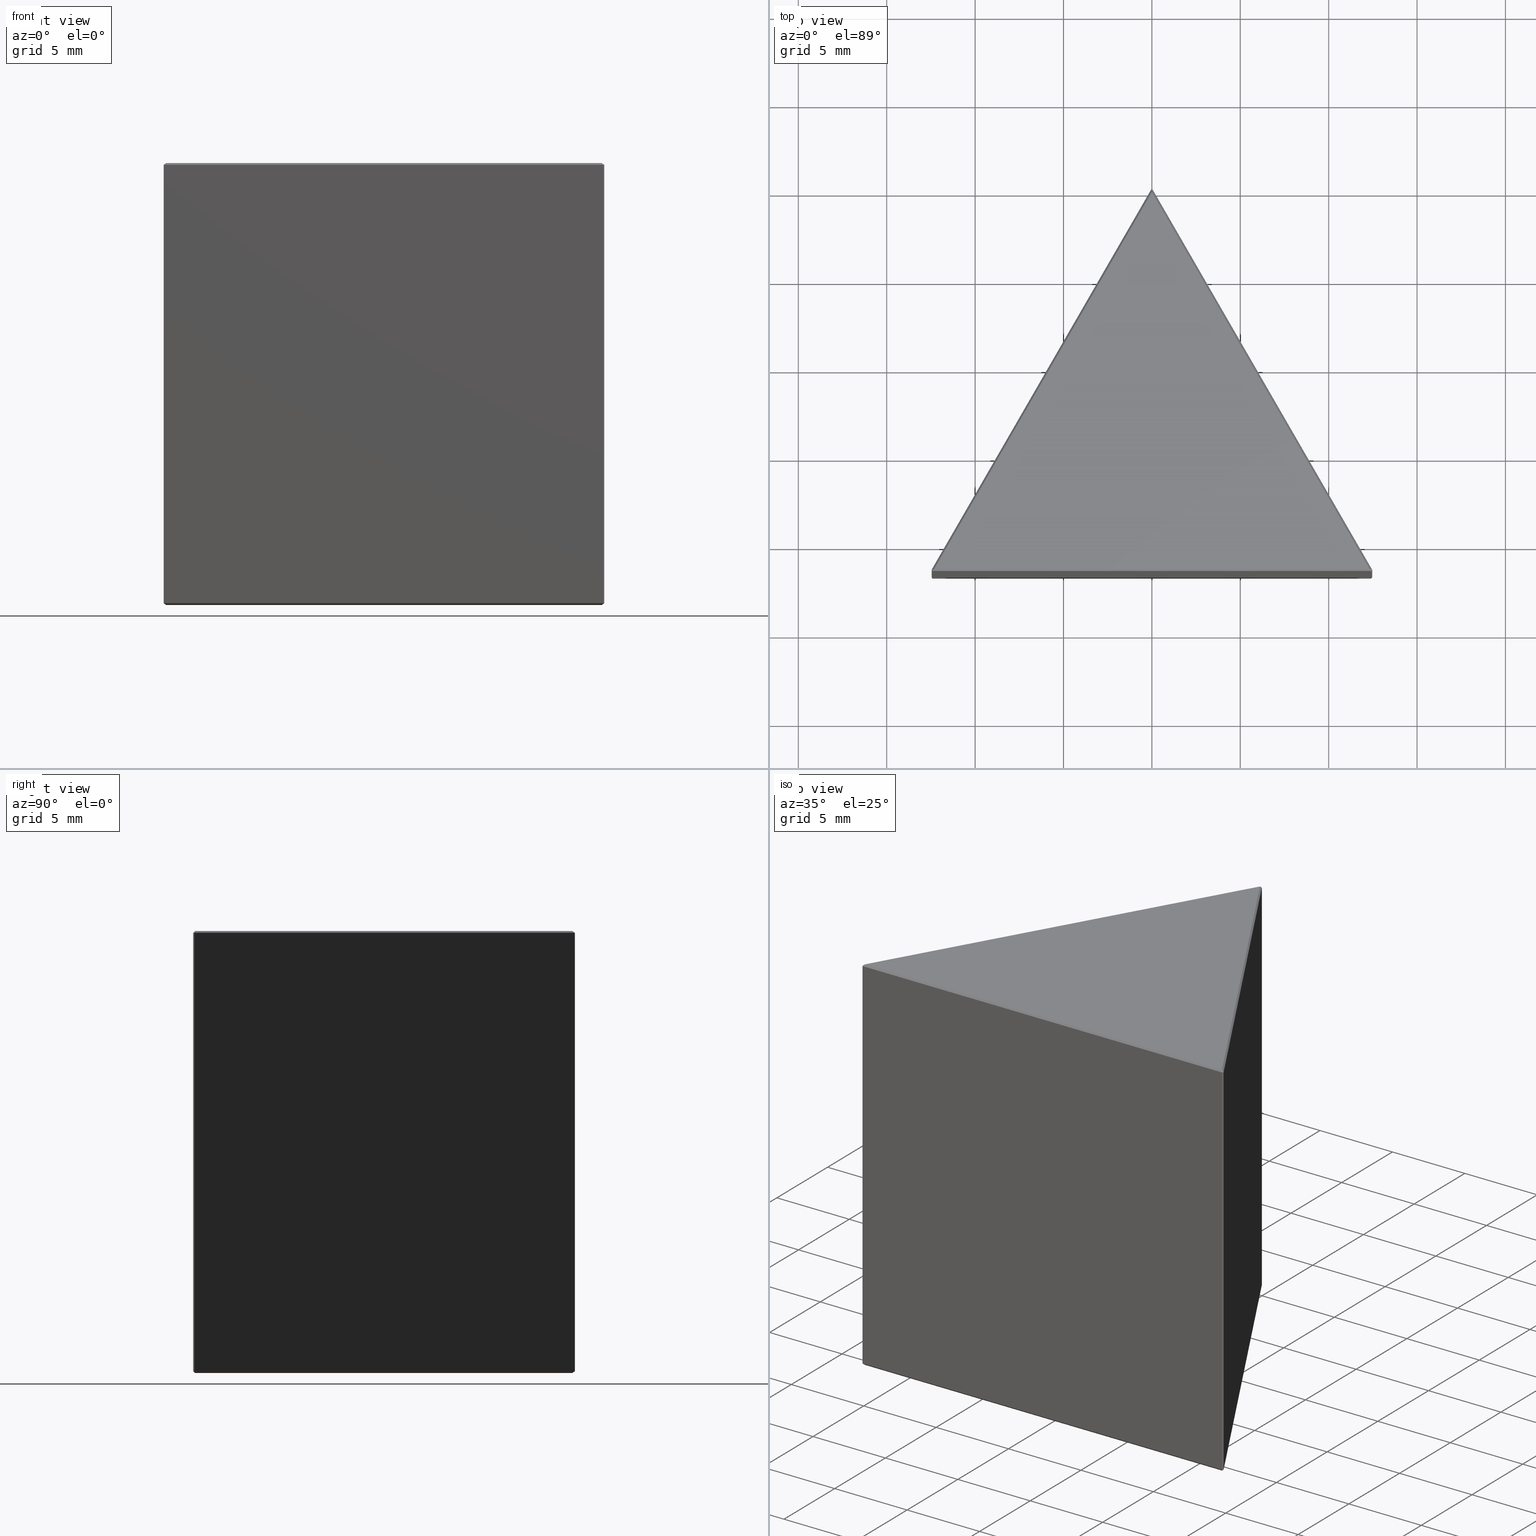
[diagram: canonical four-view strip — front | top / right | iso, engineering-drawing reading convention]
A machine part, canonical four-view strip (front | top / right | iso — engineering-drawing reading convention). The complete STEP part file that produces these views, byte-faithful:
ISO-10303-21;
HEADER;
FILE_DESCRIPTION (( 'STEP AP214' ),
    '1' );
FILE_NAME ('GPD-025-D.STEP',
    '2022-11-08T09:18:14',
    ( '' ),
    ( '' ),
    'SwSTEP 2.0',
    'SolidWorks 2022',
    '' );
FILE_SCHEMA (( 'AUTOMOTIVE_DESIGN' ));
ENDSEC;

DATA;
#1 = ORIENTED_EDGE ( 'NONE', *, *, #491, .F. ) ;
#2 = EDGE_CURVE ( 'NONE', #295, #421, #143, .T. ) ;
#3 = LINE ( 'NONE', #197, #466 ) ;
#4 = VECTOR ( 'NONE', #11, 1000.000000000000000 ) ;
#5 = CARTESIAN_POINT ( 'NONE',  ( 12.43452994616207796, -21.57950260807045240, 24.92113248654051816 ) ) ;
#6 = EDGE_LOOP ( 'NONE', ( #195, #419, #311, #208 ) ) ;
#7 = DIRECTION ( 'NONE',  ( 1.000000000000000000, 0.000000000000000000, -0.000000000000000000 ) ) ;
#8 = PRODUCT_DEFINITION ( 'δ֪', '', #228, #280 ) ;
#9 = DIRECTION ( 'NONE',  ( -0.5000000000000001110, -0.8660254037844385966, 0.000000000000000000 ) ) ;
#10 = LINE ( 'NONE', #169, #439 ) ;
#11 = DIRECTION ( 'NONE',  ( -1.000000000000000000, 0.000000000000000000, 0.000000000000000000 ) ) ;
#12 = DIRECTION ( 'NONE',  ( -0.6123724356957733761, -0.3535533905932615739, 0.7071067811865719976 ) ) ;
#13 = DIRECTION ( 'NONE',  ( 0.4472135954999716945, -0.4472135954999472141, 0.7745966692414817389 ) ) ;
#14 = DIRECTION ( 'NONE',  ( -0.6109051323707536119, -0.1636915368707840823, 0.7745966692414528731 ) ) ;
#15 = LINE ( 'NONE', #174, #372 ) ;
#16 = DIRECTION ( 'NONE',  ( 0.4597008433809820493, -0.6279630301995547947, -0.6279630301995547947 ) ) ;
#17 = DIRECTION ( 'NONE',  ( -0.2588190451025213501, -0.9659258262890682012, -0.000000000000000000 ) ) ;
#18 = AXIS2_PLACEMENT_3D ( 'NONE', #105, #373, #183 ) ;
#19 = ORIENTED_EDGE ( 'NONE', *, *, #25, .F. ) ;
#20 = ADVANCED_FACE ( 'NONE', ( #62 ), #361, .T. ) ;
#21 = VERTEX_POINT ( 'NONE', #38 ) ;
#22 = SURFACE_STYLE_FILL_AREA ( #216 ) ;
#23 = CARTESIAN_POINT ( 'NONE',  ( -0.08660254037844182518, -0.04999999999999883010, 25.00000000000000000 ) ) ;
#24 = LINE ( 'NONE', #293, #163 ) ;
#25 = EDGE_CURVE ( 'NONE', #404, #365, #231, .T. ) ;
#26 = AXIS2_PLACEMENT_3D ( 'NONE', #374, #66, #447 ) ;
#27 = VECTOR ( 'NONE', #363, 1000.000000000000114 ) ;
#28 = APPLICATION_CONTEXT ( 'automotive_design' ) ;
#29 = SURFACE_STYLE_USAGE ( .BOTH. , #102 ) ;
#30 = ADVANCED_FACE ( 'NONE', ( #342 ), #499, .T. ) ;
#31 = CARTESIAN_POINT ( 'NONE',  ( -12.32679491924311321, -21.55063509461096771, 0.000000000000000000 ) ) ;
#32 = PRODUCT_DEFINITION_SHAPE ( 'NONE', 'NONE',  #8 ) ;
#33 = CARTESIAN_POINT ( 'NONE',  ( -12.40566243270258084, -21.62950260807044245, 24.92113248654052526 ) ) ;
#34 = CARTESIAN_POINT ( 'NONE',  ( 0.05000000000000286854, -0.08660254037844881958, 24.90000000000000213 ) ) ;
#35 = ORIENTED_EDGE ( 'NONE', *, *, #463, .F. ) ;
#36 = ADVANCED_BREP_SHAPE_REPRESENTATION ( 'GPD-025-D', ( #415, #65 ), #456 ) ;
#37 = EDGE_CURVE ( 'NONE', #92, #59, #315, .T. ) ;
#38 = CARTESIAN_POINT ( 'NONE',  ( 0.05000000000000286854, -0.08660254037844881958, 24.90000000000000213 ) ) ;
#39 = VERTEX_POINT ( 'NONE', #118 ) ;
#40 = AXIS2_PLACEMENT_3D ( 'NONE', #449, #451, #64 ) ;
#41 = CARTESIAN_POINT ( 'NONE',  ( 12.46339745962155732, -21.58723763498941040, 24.90000000000000213 ) ) ;
#42 = ORIENTED_EDGE ( 'NONE', *, *, #279, .T. ) ;
#43 = CARTESIAN_POINT ( 'NONE',  ( -0.03660254037844570818, -0.06339745962155932113, 0.09999999999999592548 ) ) ;
#44 = ORIENTED_EDGE ( 'NONE', *, *, #153, .T. ) ;
#45 = EDGE_LOOP ( 'NONE', ( #501, #485, #114 ) ) ;
#46 = CARTESIAN_POINT ( 'NONE',  ( 0.000000000000000000, 0.000000000000000000, 25.00000000000000000 ) ) ;
#47 = AXIS2_PLACEMENT_3D ( 'NONE', #218, #14, #234 ) ;
#48 = DIRECTION ( 'NONE',  ( 1.000000000000000000, 0.000000000000000000, 0.000000000000000000 ) ) ;
#49 = LINE ( 'NONE', #248, #465 ) ;
#50 = ORIENTED_EDGE ( 'NONE', *, *, #184, .F. ) ;
#51 = DIRECTION ( 'NONE',  ( -0.8660254037844434816, 0.000000000000000000, -0.4999999999999915623 ) ) ;
#52 = PLANE ( 'NONE',  #351 ) ;
#53 = VERTEX_POINT ( 'NONE', #273 ) ;
#54 = DIRECTION ( 'NONE',  ( 0.000000000000000000, 0.000000000000000000, -1.000000000000000000 ) ) ;
#55 = CARTESIAN_POINT ( 'NONE',  ( 0.04665063509461227914, -0.09419872981078535046, 0.09330127018921720305 ) ) ;
#56 = EDGE_CURVE ( 'NONE', #92, #425, #194, .T. ) ;
#57 = EDGE_LOOP ( 'NONE', ( #389, #94, #348 ) ) ;
#58 = PRESENTATION_LAYER_ASSIGNMENT (  '', '', ( #440 ) ) ;
#59 = VERTEX_POINT ( 'NONE', #41 ) ;
#60 = LINE ( 'NONE', #33, #100 ) ;
#61 = CARTESIAN_POINT ( 'NONE',  ( -12.42679491924310220, -21.65063509461096558, 0.09999999999999592548 ) ) ;
#62 = FACE_OUTER_BOUND ( 'NONE', #57, .T. ) ;
#63 =( NAMED_UNIT ( * ) PLANE_ANGLE_UNIT ( ) SI_UNIT ( $, .RADIAN. ) );
#64 = DIRECTION ( 'NONE',  ( 0.000000000000000000, 0.000000000000000000, -1.000000000000000000 ) ) ;
#65 = AXIS2_PLACEMENT_3D ( 'NONE', #310, #116, #382 ) ;
#66 = DIRECTION ( 'NONE',  ( 0.6123724356957787052, -0.3535533905932646270, 0.7071067811865658914 ) ) ;
#67 = FACE_OUTER_BOUND ( 'NONE', #294, .T. ) ;
#68 = EDGE_CURVE ( 'NONE', #404, #53, #49, .T. ) ;
#69 = AXIS2_PLACEMENT_3D ( 'NONE', #23, #301, #375 ) ;
#70 = DIRECTION ( 'NONE',  ( 0.5000000000000000000, 0.8660254037844385966, 0.000000000000000000 ) ) ;
#71 = ORIENTED_EDGE ( 'NONE', *, *, #130, .T. ) ;
#72 = EDGE_LOOP ( 'NONE', ( #140, #369, #388 ) ) ;
#73 = CARTESIAN_POINT ( 'NONE',  ( -12.42679491924310220, -21.65063509461096558, 0.09999999999999592548 ) ) ;
#74 = ORIENTED_EDGE ( 'NONE', *, *, #313, .F. ) ;
#75 = AXIS2_PLACEMENT_3D ( 'NONE', #34, #337, #494 ) ;
#76 = VECTOR ( 'NONE', #317, 1000.000000000000114 ) ;
#77 = VERTEX_POINT ( 'NONE', #399 ) ;
#78 = PLANE ( 'NONE',  #497 ) ;
#79 = LINE ( 'NONE', #138, #477 ) ;
#80 = DIRECTION ( 'NONE',  ( -1.000000000000000000, 0.000000000000000000, 0.000000000000000000 ) ) ;
#81 = CARTESIAN_POINT ( 'NONE',  ( 12.40000000000000391, -21.65063509461096558, 24.90000000000000213 ) ) ;
#82 = DIRECTION ( 'NONE',  ( 0.3139815150997988247, 0.7120941236088151882, -0.6279630301995717812 ) ) ;
#83 = ORIENTED_EDGE ( 'NONE', *, *, #184, .T. ) ;
#84 = FACE_OUTER_BOUND ( 'NONE', #489, .T. ) ;
#85 = AXIS2_PLACEMENT_3D ( 'NONE', #220, #446, #98 ) ;
#86 = LINE ( 'NONE', #175, #200 ) ;
#87 = LINE ( 'NONE', #243, #226 ) ;
#88 = ORIENTED_EDGE ( 'NONE', *, *, #341, .T. ) ;
#89 = ADVANCED_FACE ( 'NONE', ( #240 ), #433, .F. ) ;
#90 = PLANE ( 'NONE',  #392 ) ;
#91 = CARTESIAN_POINT ( 'NONE',  ( 0.000000000000000000, 0.000000000000000000, 0.000000000000000000 ) ) ;
#92 = VERTEX_POINT ( 'NONE', #129 ) ;
#93 = CARTESIAN_POINT ( 'NONE',  ( -0.03660254037844570818, -0.06339745962155932113, 24.90000000000000213 ) ) ;
#94 = ORIENTED_EDGE ( 'NONE', *, *, #387, .T. ) ;
#95 = FACE_OUTER_BOUND ( 'NONE', #271, .T. ) ;
#96 = LINE ( 'NONE', #152, #306 ) ;
#97 = ORIENTED_EDGE ( 'NONE', *, *, #2, .T. ) ;
#98 = DIRECTION ( 'NONE',  ( 0.000000000000000000, 0.7851876162409640036, 0.6192579489209909527 ) ) ;
#99 = APPLICATION_CONTEXT ( 'automotive_design' ) ;
#100 = VECTOR ( 'NONE', #188, 1000.000000000000227 ) ;
#101 = PRODUCT ( 'GPD-025-D', 'GPD-025-D', '', ( #120 ) ) ;
#102 = SURFACE_SIDE_STYLE ('',( #22 ) ) ;
#103 = EDGE_CURVE ( 'NONE', #352, #147, #431, .T. ) ;
#104 = PLANE ( 'NONE',  #124 ) ;
#105 = CARTESIAN_POINT ( 'NONE',  ( 12.50000000000000000, -21.65063509461096558, 25.00000000000000000 ) ) ;
#106 = LINE ( 'NONE', #256, #192 ) ;
#107 = ORIENTED_EDGE ( 'NONE', *, *, #130, .F. ) ;
#108 = DIRECTION ( 'NONE',  ( -0.7886751345948300740, 0.2113248654051766151, -0.5773502691896058581 ) ) ;
#109 = EDGE_CURVE ( 'NONE', #425, #21, #364, .T. ) ;
#110 = VECTOR ( 'NONE', #82, 1000.000000000000000 ) ;
#111 = VECTOR ( 'NONE', #426, 1000.000000000000114 ) ;
#112 = PLANE ( 'NONE',  #146 ) ;
#113 = UNCERTAINTY_MEASURE_WITH_UNIT (LENGTH_MEASURE( 1.000000000000000082E-05 ), #346, 'distance_accuracy_value', 'NONE');
#114 = ORIENTED_EDGE ( 'NONE', *, *, #37, .F. ) ;
#115 = ADVANCED_FACE ( 'NONE', ( #284 ), #287, .F. ) ;
#116 = DIRECTION ( 'NONE',  ( 0.000000000000000000, 0.000000000000000000, 1.000000000000000000 ) ) ;
#117 = FACE_OUTER_BOUND ( 'NONE', #462, .T. ) ;
#118 = CARTESIAN_POINT ( 'NONE',  ( -1.811384529206523306E-15, -0.2000000000000053402, 0.000000000000000000 ) ) ;
#119 = ORIENTED_EDGE ( 'NONE', *, *, #223, .F. ) ;
#120 = PRODUCT_CONTEXT ( 'NONE', #28, 'mechanical' ) ;
#121 = LINE ( 'NONE', #283, #227 ) ;
#122 = ORIENTED_EDGE ( 'NONE', *, *, #420, .T. ) ;
#123 = AXIS2_PLACEMENT_3D ( 'NONE', #142, #17, #403 ) ;
#124 = AXIS2_PLACEMENT_3D ( 'NONE', #182, #410, #334 ) ;
#125 = LINE ( 'NONE', #239, #111 ) ;
#126 = ORIENTED_EDGE ( 'NONE', *, *, #405, .F. ) ;
#127 = FACE_OUTER_BOUND ( 'NONE', #329, .T. ) ;
#128 = ORIENTED_EDGE ( 'NONE', *, *, #268, .F. ) ;
#129 = CARTESIAN_POINT ( 'NONE',  ( 12.32679491924311854, -21.55063509461096771, 25.00000000000000000 ) ) ;
#130 = EDGE_CURVE ( 'NONE', #395, #21, #481, .T. ) ;
#131 = CARTESIAN_POINT ( 'NONE',  ( -0.08660254037844784814, -0.05000000000000231343, 0.000000000000000000 ) ) ;
#132 = VECTOR ( 'NONE', #54, 1000.000000000000000 ) ;
#133 = DIRECTION ( 'NONE',  ( 1.000000000000000000, 0.000000000000000000, -0.000000000000000000 ) ) ;
#134 = PRESENTATION_LAYER_ASSIGNMENT (  '', '', ( #181 ) ) ;
#135 = ORIENTED_EDGE ( 'NONE', *, *, #230, .T. ) ;
#136 = EDGE_CURVE ( 'NONE', #391, #404, #437, .T. ) ;
#137 = LINE ( 'NONE', #167, #212 ) ;
#138 = CARTESIAN_POINT ( 'NONE',  ( -12.41339745962155661, -21.70063509461096274, 25.00000000000000000 ) ) ;
#139 = LINE ( 'NONE', #217, #320 ) ;
#140 = ORIENTED_EDGE ( 'NONE', *, *, #461, .T. ) ;
#141 = LINE ( 'NONE', #368, #486 ) ;
#142 = CARTESIAN_POINT ( 'NONE',  ( -0.03660254037844570818, -0.06339745962155932113, 25.00000000000000000 ) ) ;
#143 = LINE ( 'NONE', #253, #4 ) ;
#144 = CARTESIAN_POINT ( 'NONE',  ( -12.44999999999999396, -21.56403255423251153, 24.90000000000000213 ) ) ;
#145 = FACE_OUTER_BOUND ( 'NONE', #156, .T. ) ;
#146 = AXIS2_PLACEMENT_3D ( 'NONE', #73, #383, #193 ) ;
#147 = VERTEX_POINT ( 'NONE', #61 ) ;
#148 = DIRECTION ( 'NONE',  ( -1.000000000000000000, 0.000000000000000000, 0.000000000000000000 ) ) ;
#149 = EDGE_CURVE ( 'NONE', #352, #39, #139, .T. ) ;
#150 = DIRECTION ( 'NONE',  ( 0.000000000000000000, -0.7071067811865475727, 0.7071067811865475727 ) ) ;
#151 = AXIS2_PLACEMENT_3D ( 'NONE', #224, #150, #148 ) ;
#152 = CARTESIAN_POINT ( 'NONE',  ( 0.000000000000000000, 0.000000000000000000, 0.09999999999999592548 ) ) ;
#153 = EDGE_CURVE ( 'NONE', #247, #295, #24, .T. ) ;
#154 = DIRECTION ( 'NONE',  ( -0.4597008433810226835, 0.6279630301995507979, -0.6279630301995290376 ) ) ;
#155 = DIRECTION ( 'NONE',  ( 0.5000000000000000000, 0.8660254037844385966, -0.000000000000000000 ) ) ;
#156 = EDGE_LOOP ( 'NONE', ( #135, #119, #205, #316 ) ) ;
#157 = VERTEX_POINT ( 'NONE', #356 ) ;
#158 = EDGE_CURVE ( 'NONE', #157, #247, #10, .T. ) ;
#159 = LINE ( 'NONE', #278, #132 ) ;
#160 = CARTESIAN_POINT ( 'NONE',  ( 0.000000000000000000, 0.000000000000000000, 25.00000000000000000 ) ) ;
#161 = UNCERTAINTY_MEASURE_WITH_UNIT (LENGTH_MEASURE( 1.000000000000000082E-05 ), #180, 'distance_accuracy_value', 'NONE');
#162 = ORIENTED_EDGE ( 'NONE', *, *, #158, .T. ) ;
#163 = VECTOR ( 'NONE', #424, 1000.000000000000000 ) ;
#164 = EDGE_CURVE ( 'NONE', #157, #395, #87, .T. ) ;
#165 = DIRECTION ( 'NONE',  ( 0.000000000000000000, 0.000000000000000000, -1.000000000000000000 ) ) ;
#166 = ORIENTED_EDGE ( 'NONE', *, *, #238, .F. ) ;
#167 = CARTESIAN_POINT ( 'NONE',  ( 0.000000000000000000, -21.55063509461096771, 0.000000000000000000 ) ) ;
#168 = ADVANCED_FACE ( 'NONE', ( #207 ), #52, .T. ) ;
#169 = CARTESIAN_POINT ( 'NONE',  ( 12.46339745962155732, -21.58723763498941040, 0.09999999999999716060 ) ) ;
#170 = ORIENTED_EDGE ( 'NONE', *, *, #136, .T. ) ;
#171 = SURFACE_STYLE_USAGE ( .BOTH. , #245 ) ;
#172 = DIRECTION ( 'NONE',  ( 0.8660254037844316022, 0.000000000000000000, -0.5000000000000123235 ) ) ;
#173 = ORIENTED_EDGE ( 'NONE', *, *, #109, .T. ) ;
#174 = CARTESIAN_POINT ( 'NONE',  ( -0.02886751345948175215, -0.09226497308104289474, 24.92113248654052171 ) ) ;
#175 = CARTESIAN_POINT ( 'NONE',  ( -12.42679491924310220, -21.65063509461096558, 25.00000000000000000 ) ) ;
#176 = DIRECTION ( 'NONE',  ( 0.000000000000000000, 0.000000000000000000, 1.000000000000000000 ) ) ;
#177 = ORIENTED_EDGE ( 'NONE', *, *, #469, .T. ) ;
#178 = DIRECTION ( 'NONE',  ( 0.000000000000000000, 0.000000000000000000, 1.000000000000000000 ) ) ;
#179 = ADVANCED_FACE ( 'NONE', ( #145 ), #487, .F. ) ;
#180 =( LENGTH_UNIT ( ) NAMED_UNIT ( * ) SI_UNIT ( .MILLI., .METRE. ) );
#181 = STYLED_ITEM ( 'NONE', ( #367 ), #36 ) ;
#182 = CARTESIAN_POINT ( 'NONE',  ( -12.50000000000000000, -21.65063509461096558, 25.00000000000000000 ) ) ;
#183 = DIRECTION ( 'NONE',  ( 0.5000000000000000000, -0.8660254037844385966, 0.000000000000000000 ) ) ;
#184 = EDGE_CURVE ( 'NONE', #21, #59, #186, .T. ) ;
#185 = APPLICATION_PROTOCOL_DEFINITION ( 'draft international standard', 'automotive_design', 1998, #28 ) ;
#186 = LINE ( 'NONE', #298, #312 ) ;
#187 = ADVANCED_FACE ( 'NONE', ( #308 ), #259, .F. ) ;
#188 = DIRECTION ( 'NONE',  ( 0.5773502691895722183, 0.5773502691896524874, 0.5773502691896524874 ) ) ;
#189 = DIRECTION ( 'NONE',  ( 0.5000000000000001110, -0.8660254037844387076, -0.000000000000000000 ) ) ;
#190 = ADVANCED_FACE ( 'NONE', ( #376 ), #265, .F. ) ;
#191 = CARTESIAN_POINT ( 'NONE',  ( 2.480284612299828421E-18, 4.295978965734572751E-18, 24.90000000000000213 ) ) ;
#192 = VECTOR ( 'NONE', #221, 1000.000000000000000 ) ;
#193 = DIRECTION ( 'NONE',  ( -0.7851876162409392457, 0.000000000000000000, 0.6192579489210222610 ) ) ;
#194 = LINE ( 'NONE', #418, #333 ) ;
#195 = ORIENTED_EDGE ( 'NONE', *, *, #260, .F. ) ;
#196 = ORIENTED_EDGE ( 'NONE', *, *, #233, .F. ) ;
#197 = CARTESIAN_POINT ( 'NONE',  ( 0.05000000000000286854, -0.08660254037844881958, 24.90000000000000213 ) ) ;
#198 = CARTESIAN_POINT ( 'NONE',  ( 0.08660254037844257458, -0.04999999999999926725, 25.00000000000000000 ) ) ;
#199 = EDGE_LOOP ( 'NONE', ( #244, #288, #1, #19 ) ) ;
#200 = VECTOR ( 'NONE', #479, 1000.000000000000000 ) ;
#201 = EDGE_CURVE ( 'NONE', #147, #391, #411, .T. ) ;
#202 = DIRECTION ( 'NONE',  ( 0.000000000000000000, 0.000000000000000000, 1.000000000000000000 ) ) ;
#203 = CARTESIAN_POINT ( 'NONE',  ( 12.40000000000000391, -21.65063509461096558, 24.90000000000000213 ) ) ;
#204 = CARTESIAN_POINT ( 'NONE',  ( 0.05000000000000143219, -0.08660254037844497543, 25.00000000000000000 ) ) ;
#205 = ORIENTED_EDGE ( 'NONE', *, *, #435, .F. ) ;
#206 = CARTESIAN_POINT ( 'NONE',  ( 12.46339745962155732, -21.58723763498941040, 0.09999999999999716060 ) ) ;
#207 = FACE_OUTER_BOUND ( 'NONE', #45, .T. ) ;
#208 = ORIENTED_EDGE ( 'NONE', *, *, #409, .F. ) ;
#209 = DIRECTION ( 'NONE',  ( -0.5000000000000000000, 0.8660254037844385966, 0.000000000000000000 ) ) ;
#210 = DIRECTION ( 'NONE',  ( -0.5773502691895923133, -0.5773502691896524874, 0.5773502691896325034 ) ) ;
#211 = ORIENTED_EDGE ( 'NONE', *, *, #491, .T. ) ;
#212 = VECTOR ( 'NONE', #80, 1000.000000000000000 ) ;
#213 = LINE ( 'NONE', #81, #322 ) ;
#214 = ORIENTED_EDGE ( 'NONE', *, *, #299, .F. ) ;
#215 = ADVANCED_FACE ( 'NONE', ( #67 ), #225, .T. ) ;
#216 = FILL_AREA_STYLE ('',( #305 ) ) ;
#217 = CARTESIAN_POINT ( 'NONE',  ( 0.08660254037844482278, -0.05000000000000056483, 0.000000000000000000 ) ) ;
#218 = CARTESIAN_POINT ( 'NONE',  ( -12.44999999999999396, -21.56403255423251153, 24.90000000000000213 ) ) ;
#219 =( NAMED_UNIT ( * ) SI_UNIT ( $, .STERADIAN. ) SOLID_ANGLE_UNIT ( ) );
#220 = CARTESIAN_POINT ( 'NONE',  ( -0.03660254037844570818, -0.06339745962155932113, 0.09999999999999592548 ) ) ;
#221 = DIRECTION ( 'NONE',  ( -0.7736823584807627219, -0.08413109340921076651, 0.6279630301995614561 ) ) ;
#222 = DIRECTION ( 'NONE',  ( 0.000000000000000000, 0.000000000000000000, -1.000000000000000000 ) ) ;
#223 = EDGE_CURVE ( 'NONE', #237, #391, #96, .T. ) ;
#224 = CARTESIAN_POINT ( 'NONE',  ( 0.000000000000000000, -21.55063509461096771, 25.00000000000000000 ) ) ;
#225 = PLANE ( 'NONE',  #75 ) ;
#226 = VECTOR ( 'NONE', #394, 999.9999999999998863 ) ;
#227 = VECTOR ( 'NONE', #390, 1000.000000000000000 ) ;
#228 = PRODUCT_DEFINITION_FORMATION_WITH_SPECIFIED_SOURCE ( '�κ�', '', #101, .NOT_KNOWN. ) ;
#229 = ORIENTED_EDGE ( 'NONE', *, *, #230, .F. ) ;
#230 = EDGE_CURVE ( 'NONE', #352, #391, #106, .T. ) ;
#231 = LINE ( 'NONE', #191, #296 ) ;
#232 = ORIENTED_EDGE ( 'NONE', *, *, #56, .F. ) ;
#233 = EDGE_CURVE ( 'NONE', #395, #237, #371, .T. ) ;
#234 = DIRECTION ( 'NONE',  ( 0.7851876162409204829, 0.000000000000000000, 0.6192579489210460197 ) ) ;
#235 = ORIENTED_EDGE ( 'NONE', *, *, #233, .T. ) ;
#236 = LINE ( 'NONE', #131, #401 ) ;
#237 = VERTEX_POINT ( 'NONE', #339 ) ;
#238 = EDGE_CURVE ( 'NONE', #157, #77, #498, .T. ) ;
#239 = CARTESIAN_POINT ( 'NONE',  ( -0.03660254037844570818, -0.06339745962155932113, 0.09999999999999592548 ) ) ;
#240 = FACE_OUTER_BOUND ( 'NONE', #72, .T. ) ;
#241 = ORIENTED_EDGE ( 'NONE', *, *, #136, .F. ) ;
#242 = DIRECTION ( 'NONE',  ( 0.5000000000000001110, -0.8660254037844385966, 0.000000000000000000 ) ) ;
#243 = CARTESIAN_POINT ( 'NONE',  ( 12.50000000000000000, -21.65063509461096558, 0.09999999999999592548 ) ) ;
#244 = ORIENTED_EDGE ( 'NONE', *, *, #68, .T. ) ;
#245 = SURFACE_SIDE_STYLE ('',( #290 ) ) ;
#246 = CARTESIAN_POINT ( 'NONE',  ( -12.42679491924310220, -21.65063509461096558, 0.09999999999999592548 ) ) ;
#247 = VERTEX_POINT ( 'NONE', #267 ) ;
#248 = CARTESIAN_POINT ( 'NONE',  ( -12.44999999999999396, -21.56403255423251153, 24.90000000000000213 ) ) ;
#249 = EDGE_LOOP ( 'NONE', ( #357, #476, #229 ) ) ;
#250 = VECTOR ( 'NONE', #176, 1000.000000000000000 ) ;
#251 = VECTOR ( 'NONE', #165, 1000.000000000000000 ) ;
#252 = CARTESIAN_POINT ( 'NONE',  ( -12.44999999999999574, -21.56403255423251508, 25.00000000000000000 ) ) ;
#253 = CARTESIAN_POINT ( 'NONE',  ( -12.50000000000000000, -21.65063509461096558, 24.90000000000000213 ) ) ;
#254 = CARTESIAN_POINT ( 'NONE',  ( -12.42679491924310220, -21.65063509461096558, 25.00000000000000000 ) ) ;
#255 = PLANE ( 'NONE',  #85 ) ;
#256 = CARTESIAN_POINT ( 'NONE',  ( -12.44174682452693048, -21.56313509461095634, 0.09330127018921194337 ) ) ;
#257 = ADVANCED_FACE ( 'NONE', ( #117 ), #414, .F. ) ;
#258 = EDGE_LOOP ( 'NONE', ( #379, #400, #128, #241 ) ) ;
#259 = PLANE ( 'NONE',  #40 ) ;
#260 = EDGE_CURVE ( 'NONE', #247, #77, #340, .T. ) ;
#261 = VECTOR ( 'NONE', #328, 1000.000000000000000 ) ;
#262 = FACE_OUTER_BOUND ( 'NONE', #432, .T. ) ;
#263 = DIRECTION ( 'NONE',  ( -0.2588190451025392247, 0.9659258262890633162, -7.029919865644004869E-17 ) ) ;
#264 = FACE_OUTER_BOUND ( 'NONE', #258, .T. ) ;
#265 = PLANE ( 'NONE',  #18 ) ;
#266 = ADVANCED_FACE ( 'NONE', ( #457 ), #112, .T. ) ;
#267 = CARTESIAN_POINT ( 'NONE',  ( 12.40000000000000391, -21.65063509461096558, 0.09999999999999592548 ) ) ;
#268 = EDGE_CURVE ( 'NONE', #404, #421, #345, .T. ) ;
#269 = COLOUR_RGB ( '',1.000000000000000000, 1.000000000000000000, 1.000000000000000000 ) ;
#270 = DIRECTION ( 'NONE',  ( -0.9659258262890680902, 0.2588190451025212946, -1.771084676333514617E-14 ) ) ;
#271 = EDGE_LOOP ( 'NONE', ( #460, #467, #196 ) ) ;
#272 = DIRECTION ( 'NONE',  ( 0.8660254037844387076, -0.5000000000000001110, 0.000000000000000000 ) ) ;
#273 = CARTESIAN_POINT ( 'NONE',  ( -12.32679491924311677, -21.55063509461096771, 25.00000000000000000 ) ) ;
#274 = EDGE_LOOP ( 'NONE', ( #162, #300, #166 ) ) ;
#275 = DIRECTION ( 'NONE',  ( 0.5000000000000001110, 0.8660254037844387076, 0.000000000000000000 ) ) ;
#276 = ORIENTED_EDGE ( 'NONE', *, *, #56, .T. ) ;
#277 =( GEOMETRIC_REPRESENTATION_CONTEXT ( 3 ) GLOBAL_UNCERTAINTY_ASSIGNED_CONTEXT ( ( #113 ) ) GLOBAL_UNIT_ASSIGNED_CONTEXT ( ( #346, #327, #473 ) ) REPRESENTATION_CONTEXT ( 'NONE', 'WORKASPACE' ) );
#278 = CARTESIAN_POINT ( 'NONE',  ( -0.03660254037844570818, -0.06339745962155932113, 25.00000000000000000 ) ) ;
#279 = EDGE_CURVE ( 'NONE', #53, #92, #121, .T. ) ;
#280 = PRODUCT_DEFINITION_CONTEXT ( 'detailed design', #99, 'design' ) ;
#281 = EDGE_LOOP ( 'NONE', ( #126, #314, #318, #472 ) ) ;
#282 = PRESENTATION_STYLE_ASSIGNMENT (( #171 ) ) ;
#283 = CARTESIAN_POINT ( 'NONE',  ( 12.50000000000000000, -21.55063509461096771, 25.00000000000000000 ) ) ;
#284 = FACE_OUTER_BOUND ( 'NONE', #344, .T. ) ;
#285 = ORIENTED_EDGE ( 'NONE', *, *, #25, .T. ) ;
#286 = FACE_OUTER_BOUND ( 'NONE', #274, .T. ) ;
#287 = PLANE ( 'NONE',  #123 ) ;
#288 = ORIENTED_EDGE ( 'NONE', *, *, #341, .F. ) ;
#289 = VECTOR ( 'NONE', #408, 1000.000000000000000 ) ;
#290 = SURFACE_STYLE_FILL_AREA ( #464 ) ;
#291 = ORIENTED_EDGE ( 'NONE', *, *, #331, .T. ) ;
#292 = DIRECTION ( 'NONE',  ( 1.000000000000000000, 0.000000000000000000, 0.000000000000000000 ) ) ;
#293 = CARTESIAN_POINT ( 'NONE',  ( 12.40000000000000391, -21.65063509461096558, 25.00000000000000000 ) ) ;
#294 = EDGE_LOOP ( 'NONE', ( #211, #173, #35 ) ) ;
#295 = VERTEX_POINT ( 'NONE', #203 ) ;
#296 = VECTOR ( 'NONE', #275, 999.9999999999998863 ) ;
#297 = AXIS2_PLACEMENT_3D ( 'NONE', #160, #272, #70 ) ;
#298 = CARTESIAN_POINT ( 'NONE',  ( 12.50000000000000000, -21.65063509461096558, 24.90000000000000213 ) ) ;
#299 = EDGE_CURVE ( 'NONE', #395, #39, #397, .T. ) ;
#300 = ORIENTED_EDGE ( 'NONE', *, *, #260, .T. ) ;
#301 = DIRECTION ( 'NONE',  ( 0.6123724356957999104, 0.3535533905932768950, 0.7071067811865413555 ) ) ;
#302 = PLANE ( 'NONE',  #429 ) ;
#303 = ORIENTED_EDGE ( 'NONE', *, *, #37, .T. ) ;
#304 = CARTESIAN_POINT ( 'NONE',  ( 12.40000000000000391, -21.65063509461096558, 24.90000000000000213 ) ) ;
#305 = FILL_AREA_STYLE_COLOUR ( '', #343 ) ;
#306 = VECTOR ( 'NONE', #309, 999.9999999999998863 ) ;
#307 = VECTOR ( 'NONE', #263, 1000.000000000000114 ) ;
#308 = FACE_OUTER_BOUND ( 'NONE', #281, .T. ) ;
#309 = DIRECTION ( 'NONE',  ( -0.5000000000000001110, -0.8660254037844387076, 0.000000000000000000 ) ) ;
#310 = CARTESIAN_POINT ( 'NONE',  ( 0.000000000000000000, 0.000000000000000000, 0.000000000000000000 ) ) ;
#311 = ORIENTED_EDGE ( 'NONE', *, *, #103, .F. ) ;
#312 = VECTOR ( 'NONE', #189, 999.9999999999998863 ) ;
#313 = EDGE_CURVE ( 'NONE', #92, #295, #213, .T. ) ;
#314 = ORIENTED_EDGE ( 'NONE', *, *, #153, .F. ) ;
#315 = LINE ( 'NONE', #5, #455 ) ;
#316 = ORIENTED_EDGE ( 'NONE', *, *, #149, .F. ) ;
#317 = DIRECTION ( 'NONE',  ( 0.2588190451025392247, -0.9659258262890633162, -5.596628103994314545E-17 ) ) ;
#318 = ORIENTED_EDGE ( 'NONE', *, *, #158, .F. ) ;
#319 = CARTESIAN_POINT ( 'NONE',  ( -12.42679491924310220, -21.65063509461096558, 24.90000000000000213 ) ) ;
#320 = VECTOR ( 'NONE', #370, 1000.000000000000114 ) ;
#321 = ORIENTED_EDGE ( 'NONE', *, *, #164, .T. ) ;
#322 = VECTOR ( 'NONE', #16, 1000.000000000000114 ) ;
#323 = DIRECTION ( 'NONE',  ( -0.000000000000000000, 0.7071067811865352493, 0.7071067811865597852 ) ) ;
#324 = DIRECTION ( 'NONE',  ( 0.7736823584807439591, 0.08413109340920743584, 0.6279630301995848818 ) ) ;
#325 = DIRECTION ( 'NONE',  ( 0.9659258262890682012, -0.2588190451025212946, -3.977933358375440875E-15 ) ) ;
#326 = FACE_OUTER_BOUND ( 'NONE', #470, .T. ) ;
#327 =( NAMED_UNIT ( * ) PLANE_ANGLE_UNIT ( ) SI_UNIT ( $, .RADIAN. ) );
#328 = DIRECTION ( 'NONE',  ( 0.000000000000000000, 0.000000000000000000, 1.000000000000000000 ) ) ;
#329 = EDGE_LOOP ( 'NONE', ( #88, #42, #276 ) ) ;
#330 = ORIENTED_EDGE ( 'NONE', *, *, #335, .T. ) ;
#331 = EDGE_CURVE ( 'NONE', #421, #147, #86, .T. ) ;
#332 = CARTESIAN_POINT ( 'NONE',  ( 0.05000000000000286854, -0.08660254037844880570, 0.09999999999999716060 ) ) ;
#333 = VECTOR ( 'NONE', #385, 1000.000000000000114 ) ;
#334 = DIRECTION ( 'NONE',  ( 0.000000000000000000, -0.000000000000000000, 1.000000000000000000 ) ) ;
#335 = EDGE_CURVE ( 'NONE', #147, #247, #141, .T. ) ;
#336 = VECTOR ( 'NONE', #154, 1000.000000000000000 ) ;
#337 = DIRECTION ( 'NONE',  ( 0.1636915368707710372, 0.6109051323707384018, 0.7745966692414676391 ) ) ;
#338 =( NAMED_UNIT ( * ) SI_UNIT ( $, .STERADIAN. ) SOLID_ANGLE_UNIT ( ) );
#339 = CARTESIAN_POINT ( 'NONE',  ( -0.03660254037844570818, -0.06339745962155932113, 0.09999999999999592548 ) ) ;
#340 = LINE ( 'NONE', #496, #336 ) ;
#341 = EDGE_CURVE ( 'NONE', #425, #53, #79, .T. ) ;
#342 = FACE_OUTER_BOUND ( 'NONE', #199, .T. ) ;
#343 = COLOUR_RGB ( '',1.000000000000000000, 1.000000000000000000, 1.000000000000000000 ) ;
#344 = EDGE_LOOP ( 'NONE', ( #443, #107, #235, #445 ) ) ;
#345 = LINE ( 'NONE', #500, #76 ) ;
#346 =( LENGTH_UNIT ( ) NAMED_UNIT ( * ) SI_UNIT ( .MILLI., .METRE. ) );
#347 = UNCERTAINTY_MEASURE_WITH_UNIT (LENGTH_MEASURE( 1.000000000000000082E-05 ), #402, 'distance_accuracy_value', 'NONE');
#348 = ORIENTED_EDGE ( 'NONE', *, *, #68, .F. ) ;
#349 = ADVANCED_FACE ( 'NONE', ( #326 ), #471, .T. ) ;
#350 = FACE_OUTER_BOUND ( 'NONE', #6, .T. ) ;
#351 = AXIS2_PLACEMENT_3D ( 'NONE', #360, #13, #172 ) ;
#352 = VERTEX_POINT ( 'NONE', #31 ) ;
#353 =( GEOMETRIC_REPRESENTATION_CONTEXT ( 3 ) GLOBAL_UNCERTAINTY_ASSIGNED_CONTEXT ( ( #161 ) ) GLOBAL_UNIT_ASSIGNED_CONTEXT ( ( #180, #444, #338 ) ) REPRESENTATION_CONTEXT ( 'NONE', 'WORKASPACE' ) );
#354 = ADVANCED_FACE ( 'NONE', ( #450 ), #104, .F. ) ;
#355 = FILL_AREA_STYLE_COLOUR ( '', #269 ) ;
#356 = CARTESIAN_POINT ( 'NONE',  ( 12.46339745962155732, -21.58723763498941040, 0.09999999999999716060 ) ) ;
#357 = ORIENTED_EDGE ( 'NONE', *, *, #103, .T. ) ;
#358 = DIRECTION ( 'NONE',  ( 0.4472135954999598151, -0.4472135954999202356, -0.7745966692415040544 ) ) ;
#359 = ADVANCED_FACE ( 'NONE', ( #262 ), #436, .T. ) ;
#360 = CARTESIAN_POINT ( 'NONE',  ( 12.40000000000000391, -21.65063509461096558, 24.90000000000000213 ) ) ;
#361 = PLANE ( 'NONE',  #47 ) ;
#362 = PLANE ( 'NONE',  #377 ) ;
#363 = DIRECTION ( 'NONE',  ( -0.3139815150998050974, -0.7120941236088432769, -0.6279630301995366981 ) ) ;
#364 = LINE ( 'NONE', #474, #110 ) ;
#365 = VERTEX_POINT ( 'NONE', #93 ) ;
#366 = VECTOR ( 'NONE', #108, 1000.000000000000227 ) ;
#367 = PRESENTATION_STYLE_ASSIGNMENT (( #29 ) ) ;
#368 = CARTESIAN_POINT ( 'NONE',  ( -12.50000000000000000, -21.65063509461096558, 0.09999999999999592548 ) ) ;
#369 = ORIENTED_EDGE ( 'NONE', *, *, #409, .T. ) ;
#370 = DIRECTION ( 'NONE',  ( 0.5000000000000001110, 0.8660254037844385966, 0.000000000000000000 ) ) ;
#371 = LINE ( 'NONE', #43, #413 ) ;
#372 = VECTOR ( 'NONE', #483, 1000.000000000000114 ) ;
#373 = DIRECTION ( 'NONE',  ( -0.8660254037844387076, -0.5000000000000001110, 0.000000000000000000 ) ) ;
#374 = CARTESIAN_POINT ( 'NONE',  ( 0.000000000000000000, 0.000000000000000000, 0.09999999999999592548 ) ) ;
#375 = DIRECTION ( 'NONE',  ( 0.5000000000000000000, -0.8660254037844385966, 0.000000000000000000 ) ) ;
#376 = FACE_OUTER_BOUND ( 'NONE', #381, .T. ) ;
#377 = AXIS2_PLACEMENT_3D ( 'NONE', #468, #12, #209 ) ;
#378 = EDGE_LOOP ( 'NONE', ( #44, #97, #291, #330 ) ) ;
#379 = ORIENTED_EDGE ( 'NONE', *, *, #201, .F. ) ;
#380 = PRODUCT_RELATED_PRODUCT_CATEGORY ( 'part', '', ( #101 ) ) ;
#381 = EDGE_LOOP ( 'NONE', ( #71, #83, #177, #321 ) ) ;
#382 = DIRECTION ( 'NONE',  ( 1.000000000000000000, 0.000000000000000000, 0.000000000000000000 ) ) ;
#383 = DIRECTION ( 'NONE',  ( -0.6109051323707307413, -0.1636915368707779761, -0.7745966692414721910 ) ) ;
#384 = AXIS2_PLACEMENT_3D ( 'NONE', #91, #178, #133 ) ;
#385 = DIRECTION ( 'NONE',  ( -0.5000000000000001110, 0.8660254037844385966, 0.000000000000000000 ) ) ;
#386 = MECHANICAL_DESIGN_GEOMETRIC_PRESENTATION_REPRESENTATION (  '', ( #440 ), #277 ) ;
#387 = EDGE_CURVE ( 'NONE', #421, #53, #60, .T. ) ;
#388 = ORIENTED_EDGE ( 'NONE', *, *, #149, .T. ) ;
#389 = ORIENTED_EDGE ( 'NONE', *, *, #268, .T. ) ;
#390 = DIRECTION ( 'NONE',  ( 1.000000000000000000, 0.000000000000000000, 0.000000000000000000 ) ) ;
#391 = VERTEX_POINT ( 'NONE', #441 ) ;
#392 = AXIS2_PLACEMENT_3D ( 'NONE', #206, #358, #51 ) ;
#393 = ADVANCED_FACE ( 'NONE', ( #95 ), #255, .T. ) ;
#394 = DIRECTION ( 'NONE',  ( -0.5000000000000001110, 0.8660254037844387076, 0.000000000000000000 ) ) ;
#395 = VERTEX_POINT ( 'NONE', #332 ) ;
#396 = CARTESIAN_POINT ( 'NONE',  ( 12.46339745962155732, -21.58723763498941040, 25.00000000000000000 ) ) ;
#397 = LINE ( 'NONE', #55, #27 ) ;
#398 = ORIENTED_EDGE ( 'NONE', *, *, #164, .F. ) ;
#399 = CARTESIAN_POINT ( 'NONE',  ( 12.32679491924311144, -21.55063509461096771, 0.000000000000000000 ) ) ;
#400 = ORIENTED_EDGE ( 'NONE', *, *, #331, .F. ) ;
#401 = VECTOR ( 'NONE', #242, 1000.000000000000114 ) ;
#402 =( LENGTH_UNIT ( ) NAMED_UNIT ( * ) SI_UNIT ( .MILLI., .METRE. ) );
#403 = DIRECTION ( 'NONE',  ( 0.000000000000000000, 0.000000000000000000, -1.000000000000000000 ) ) ;
#404 = VERTEX_POINT ( 'NONE', #144 ) ;
#405 = EDGE_CURVE ( 'NONE', #295, #59, #490, .T. ) ;
#406 = ORIENTED_EDGE ( 'NONE', *, *, #387, .F. ) ;
#407 = CLOSED_SHELL ( 'NONE', ( #190, #257, #354, #448, #89, #349, #495, #412, #187, #168, #20, #266, #484, #359, #30, #179, #488, #215, #393, #115 ) ) ;
#408 = DIRECTION ( 'NONE',  ( 0.7071067811865282549, 0.7071067811865668906, 2.866583523299530408E-17 ) ) ;
#409 = EDGE_CURVE ( 'NONE', #77, #352, #137, .T. ) ;
#410 = DIRECTION ( 'NONE',  ( 0.000000000000000000, 1.000000000000000000, 0.000000000000000000 ) ) ;
#411 = LINE ( 'NONE', #442, #307 ) ;
#412 = ADVANCED_FACE ( 'NONE', ( #350 ), #478, .F. ) ;
#413 = VECTOR ( 'NONE', #270, 1000.000000000000000 ) ;
#414 = PLANE ( 'NONE',  #297 ) ;
#415 = MANIFOLD_SOLID_BREP ( '����1', #407 ) ;
#416 = APPLICATION_PROTOCOL_DEFINITION ( 'draft international standard', 'automotive_design', 1998, #99 ) ;
#417 = ORIENTED_EDGE ( 'NONE', *, *, #461, .F. ) ;
#418 = CARTESIAN_POINT ( 'NONE',  ( -0.08660254037844182518, -0.04999999999999882316, 25.00000000000000000 ) ) ;
#419 = ORIENTED_EDGE ( 'NONE', *, *, #335, .F. ) ;
#420 = EDGE_CURVE ( 'NONE', #365, #237, #159, .T. ) ;
#421 = VERTEX_POINT ( 'NONE', #319 ) ;
#422 = CARTESIAN_POINT ( 'NONE',  ( 1.083700895443211318E-15, -0.1999999999999971523, 25.00000000000000000 ) ) ;
#423 = ORIENTED_EDGE ( 'NONE', *, *, #279, .F. ) ;
#424 = DIRECTION ( 'NONE',  ( 0.000000000000000000, 0.000000000000000000, 1.000000000000000000 ) ) ;
#425 = VERTEX_POINT ( 'NONE', #422 ) ;
#426 = DIRECTION ( 'NONE',  ( -0.2113248654051880226, 0.7886751345948282976, 0.5773502691896044148 ) ) ;
#427 = DIRECTION ( 'NONE',  ( -0.7071067811865281438, -0.7071067811865670016, -1.377500189819187997E-14 ) ) ;
#428 = ORIENTED_EDGE ( 'NONE', *, *, #2, .F. ) ;
#429 = AXIS2_PLACEMENT_3D ( 'NONE', #254, #434, #222 ) ;
#430 = LINE ( 'NONE', #396, #251 ) ;
#431 = LINE ( 'NONE', #246, #492 ) ;
#432 = EDGE_LOOP ( 'NONE', ( #303, #50, #438, #232 ) ) ;
#433 = PLANE ( 'NONE',  #384 ) ;
#434 = DIRECTION ( 'NONE',  ( 0.9659258262890633162, 0.2588190451025392247, 0.000000000000000000 ) ) ;
#435 = EDGE_CURVE ( 'NONE', #39, #237, #125, .T. ) ;
#436 = PLANE ( 'NONE',  #69 ) ;
#437 = LINE ( 'NONE', #252, #261 ) ;
#438 = ORIENTED_EDGE ( 'NONE', *, *, #109, .F. ) ;
#439 = VECTOR ( 'NONE', #427, 999.9999999999998863 ) ;
#440 = STYLED_ITEM ( 'NONE', ( #282 ), #415 ) ;
#441 = CARTESIAN_POINT ( 'NONE',  ( -12.44999999999999396, -21.56403255423251153, 0.09999999999999592548 ) ) ;
#442 = CARTESIAN_POINT ( 'NONE',  ( -12.42679491924310220, -21.65063509461096558, 0.09999999999999592548 ) ) ;
#443 = ORIENTED_EDGE ( 'NONE', *, *, #463, .T. ) ;
#444 =( NAMED_UNIT ( * ) PLANE_ANGLE_UNIT ( ) SI_UNIT ( $, .RADIAN. ) );
#445 = ORIENTED_EDGE ( 'NONE', *, *, #420, .F. ) ;
#446 = DIRECTION ( 'NONE',  ( 0.1636915368707718976, 0.6109051323707005432, -0.7745966692414973931 ) ) ;
#447 = DIRECTION ( 'NONE',  ( -0.5000000000000000000, -0.8660254037844385966, 0.000000000000000000 ) ) ;
#448 = ADVANCED_FACE ( 'NONE', ( #127 ), #78, .T. ) ;
#449 = CARTESIAN_POINT ( 'NONE',  ( 12.46339745962155732, -21.58723763498941040, 25.00000000000000000 ) ) ;
#450 = FACE_OUTER_BOUND ( 'NONE', #378, .T. ) ;
#451 = DIRECTION ( 'NONE',  ( -0.7071067811865670016, 0.7071067811865281438, 0.000000000000000000 ) ) ;
#452 = CARTESIAN_POINT ( 'NONE',  ( 12.46339745962155732, -21.58723763498941040, 0.09999999999999716060 ) ) ;
#453 = DIRECTION ( 'NONE',  ( -0.6123724356957972459, 0.3535533905932753407, 0.7071067811865443531 ) ) ;
#454 = SHAPE_DEFINITION_REPRESENTATION ( #32, #36 ) ;
#455 = VECTOR ( 'NONE', #459, 1000.000000000000114 ) ;
#456 =( GEOMETRIC_REPRESENTATION_CONTEXT ( 3 ) GLOBAL_UNCERTAINTY_ASSIGNED_CONTEXT ( ( #347 ) ) GLOBAL_UNIT_ASSIGNED_CONTEXT ( ( #402, #63, #219 ) ) REPRESENTATION_CONTEXT ( 'NONE', 'WORKASPACE' ) );
#457 = FACE_OUTER_BOUND ( 'NONE', #249, .T. ) ;
#458 = MECHANICAL_DESIGN_GEOMETRIC_PRESENTATION_REPRESENTATION (  '', ( #181 ), #353 ) ;
#459 = DIRECTION ( 'NONE',  ( 0.7886751345948080916, -0.2113248654051838593, -0.5773502691896335026 ) ) ;
#460 = ORIENTED_EDGE ( 'NONE', *, *, #299, .T. ) ;
#461 = EDGE_CURVE ( 'NONE', #39, #77, #236, .T. ) ;
#462 = EDGE_LOOP ( 'NONE', ( #170, #285, #122, #482 ) ) ;
#463 = EDGE_CURVE ( 'NONE', #365, #21, #3, .T. ) ;
#464 = FILL_AREA_STYLE ('',( #355 ) ) ;
#465 = VECTOR ( 'NONE', #324, 999.9999999999998863 ) ;
#466 = VECTOR ( 'NONE', #325, 1000.000000000000227 ) ;
#467 = ORIENTED_EDGE ( 'NONE', *, *, #435, .T. ) ;
#468 = CARTESIAN_POINT ( 'NONE',  ( 12.50000000000000000, -21.65063509461096558, 0.09999999999999592548 ) ) ;
#469 = EDGE_CURVE ( 'NONE', #59, #157, #430, .T. ) ;
#470 = EDGE_LOOP ( 'NONE', ( #406, #428, #74, #423 ) ) ;
#471 = PLANE ( 'NONE',  #151 ) ;
#472 = ORIENTED_EDGE ( 'NONE', *, *, #469, .F. ) ;
#473 =( NAMED_UNIT ( * ) SI_UNIT ( $, .STERADIAN. ) SOLID_ANGLE_UNIT ( ) );
#474 = CARTESIAN_POINT ( 'NONE',  ( 0.05000000000000286854, -0.08660254037844881958, 24.90000000000000213 ) ) ;
#475 = AXIS2_PLACEMENT_3D ( 'NONE', #198, #453, #155 ) ;
#476 = ORIENTED_EDGE ( 'NONE', *, *, #201, .T. ) ;
#477 = VECTOR ( 'NONE', #9, 1000.000000000000114 ) ;
#478 = PLANE ( 'NONE',  #493 ) ;
#479 = DIRECTION ( 'NONE',  ( 0.000000000000000000, 0.000000000000000000, -1.000000000000000000 ) ) ;
#480 = ORIENTED_EDGE ( 'NONE', *, *, #238, .T. ) ;
#481 = LINE ( 'NONE', #204, #250 ) ;
#482 = ORIENTED_EDGE ( 'NONE', *, *, #223, .T. ) ;
#483 = DIRECTION ( 'NONE',  ( 0.2113248654052040376, -0.7886751345947988767, 0.5773502691896387207 ) ) ;
#484 = ADVANCED_FACE ( 'NONE', ( #286 ), #90, .T. ) ;
#485 = ORIENTED_EDGE ( 'NONE', *, *, #405, .T. ) ;
#486 = VECTOR ( 'NONE', #48, 1000.000000000000000 ) ;
#487 = PLANE ( 'NONE',  #26 ) ;
#488 = ADVANCED_FACE ( 'NONE', ( #84 ), #362, .F. ) ;
#489 = EDGE_LOOP ( 'NONE', ( #480, #417, #214, #398 ) ) ;
#490 = LINE ( 'NONE', #304, #289 ) ;
#491 = EDGE_CURVE ( 'NONE', #365, #425, #15, .T. ) ;
#492 = VECTOR ( 'NONE', #210, 1000.000000000000000 ) ;
#493 = AXIS2_PLACEMENT_3D ( 'NONE', #502, #323, #292 ) ;
#494 = DIRECTION ( 'NONE',  ( 0.000000000000000000, -0.7851876162409338056, 0.6192579489210292554 ) ) ;
#495 = ADVANCED_FACE ( 'NONE', ( #264 ), #302, .F. ) ;
#496 = CARTESIAN_POINT ( 'NONE',  ( 12.39509618943233882, -21.64393636480019012, 0.09330127018921936799 ) ) ;
#497 = AXIS2_PLACEMENT_3D ( 'NONE', #46, #202, #7 ) ;
#498 = LINE ( 'NONE', #452, #366 ) ;
#499 = PLANE ( 'NONE',  #475 ) ;
#500 = CARTESIAN_POINT ( 'NONE',  ( -12.44999999999999396, -21.56403255423251153, 24.90000000000000213 ) ) ;
#501 = ORIENTED_EDGE ( 'NONE', *, *, #313, .T. ) ;
#502 = CARTESIAN_POINT ( 'NONE',  ( -12.50000000000000000, -21.65063509461096558, 0.09999999999999592548 ) ) ;
ENDSEC;
END-ISO-10303-21;
